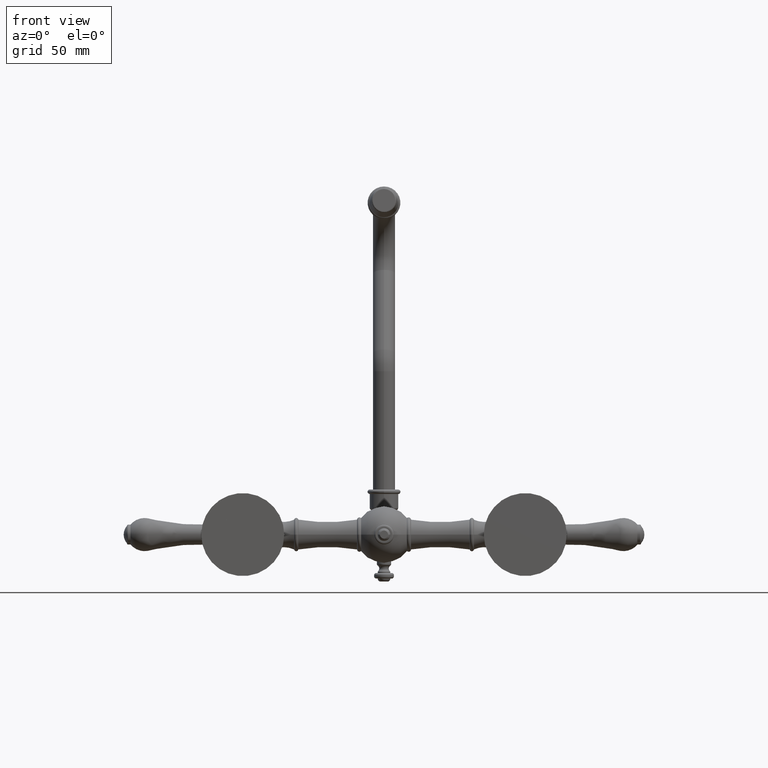
[diagram: clean part render]
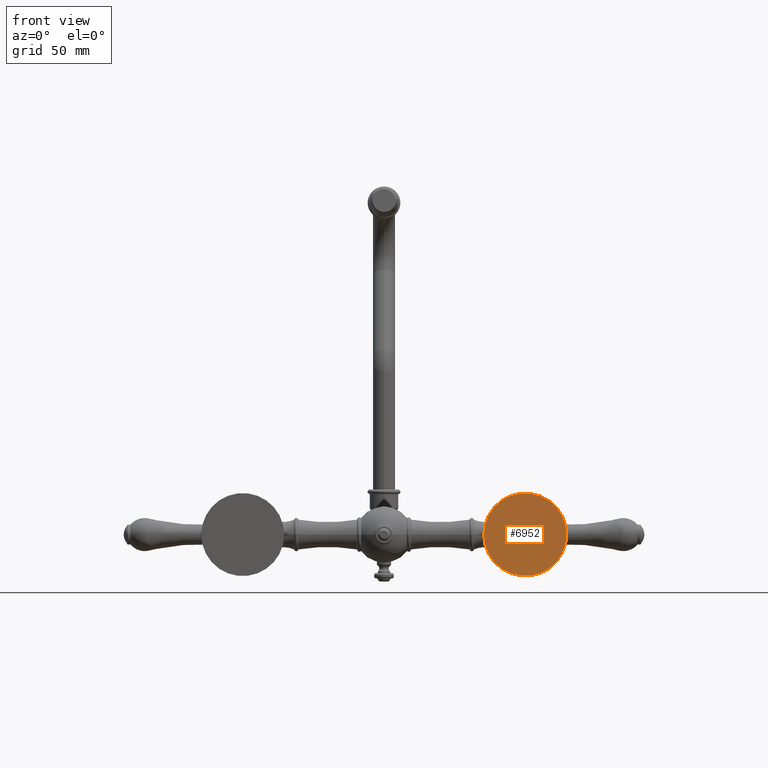
[diagram: same view with one face highlighted and labeled with its STEP entity id]
A machine part, front view. The second image highlights one B-rep face of the part: STEP entity #6952.
In plain terms, the highlighted planar face has unit normal (0, -1, 0).
Its self-contained STEP definition (entity closure, byte-faithful):
#3130=CARTESIAN_POINT('',(4.E0,-2.557E0,0.E0));
#3131=DIRECTION('',(0.E0,-1.E0,0.E0));
#3132=DIRECTION('',(1.E0,0.E0,0.E0));
#3133=AXIS2_PLACEMENT_3D('',#3130,#3131,#3132);
#3152=CARTESIAN_POINT('',(4.E0,-2.557E0,0.E0));
#3153=DIRECTION('',(0.E0,1.E0,0.E0));
#3154=DIRECTION('',(1.E0,0.E0,0.E0));
#3155=AXIS2_PLACEMENT_3D('',#3152,#3153,#3154);
#3788=CARTESIAN_POINT('',(5.175E0,-2.557E0,0.E0));
#3790=VERTEX_POINT('',#3788);
#3802=CARTESIAN_POINT('',(2.825E0,-2.557E0,0.E0));
#3804=VERTEX_POINT('',#3802);
#6943=CARTESIAN_POINT('',(4.E0,-2.557E0,0.E0));
#6944=DIRECTION('',(0.E0,-1.E0,0.E0));
#6945=DIRECTION('',(-1.E0,0.E0,0.E0));
#6946=AXIS2_PLACEMENT_3D('',#6943,#6944,#6945);
#6947=PLANE('',#6946);
#6948=ORIENTED_EDGE('',*,*,#6898,.F.);
#6949=ORIENTED_EDGE('',*,*,#6926,.T.);
#6950=EDGE_LOOP('',(#6948,#6949));
#6951=FACE_OUTER_BOUND('',#6950,.F.);
#3134=CIRCLE('',#3133,1.175E0);
#3156=CIRCLE('',#3155,1.175E0);
#6898=EDGE_CURVE('',#3790,#3804,#3134,.T.);
#6926=EDGE_CURVE('',#3790,#3804,#3156,.T.);
#6952=ADVANCED_FACE('',(#6951),#6947,.T.);